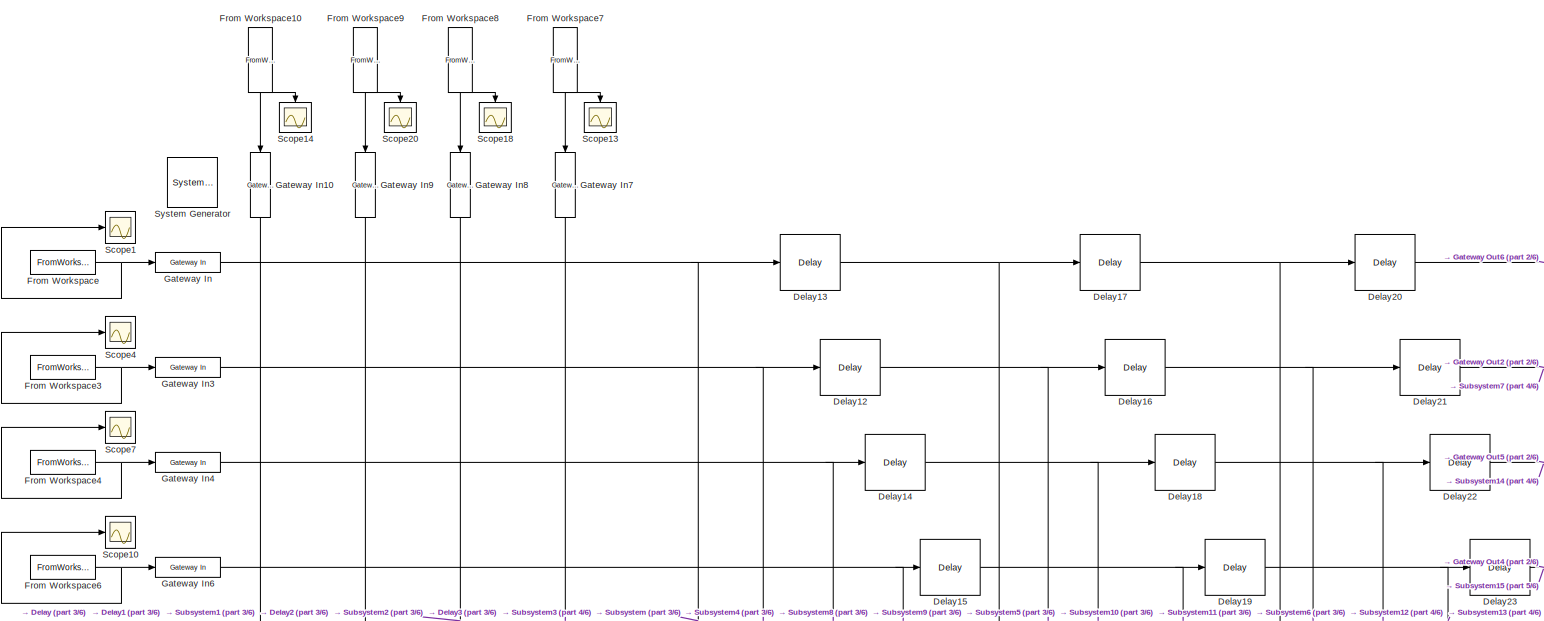
[diagram: root canvas - part 1/6, top left region]
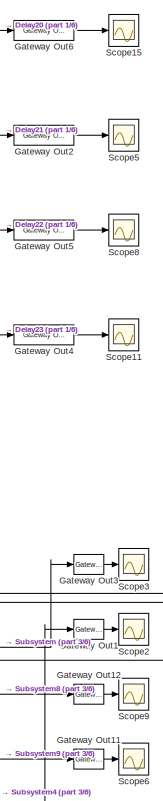
[diagram: root canvas - part 2/6, middle right region]
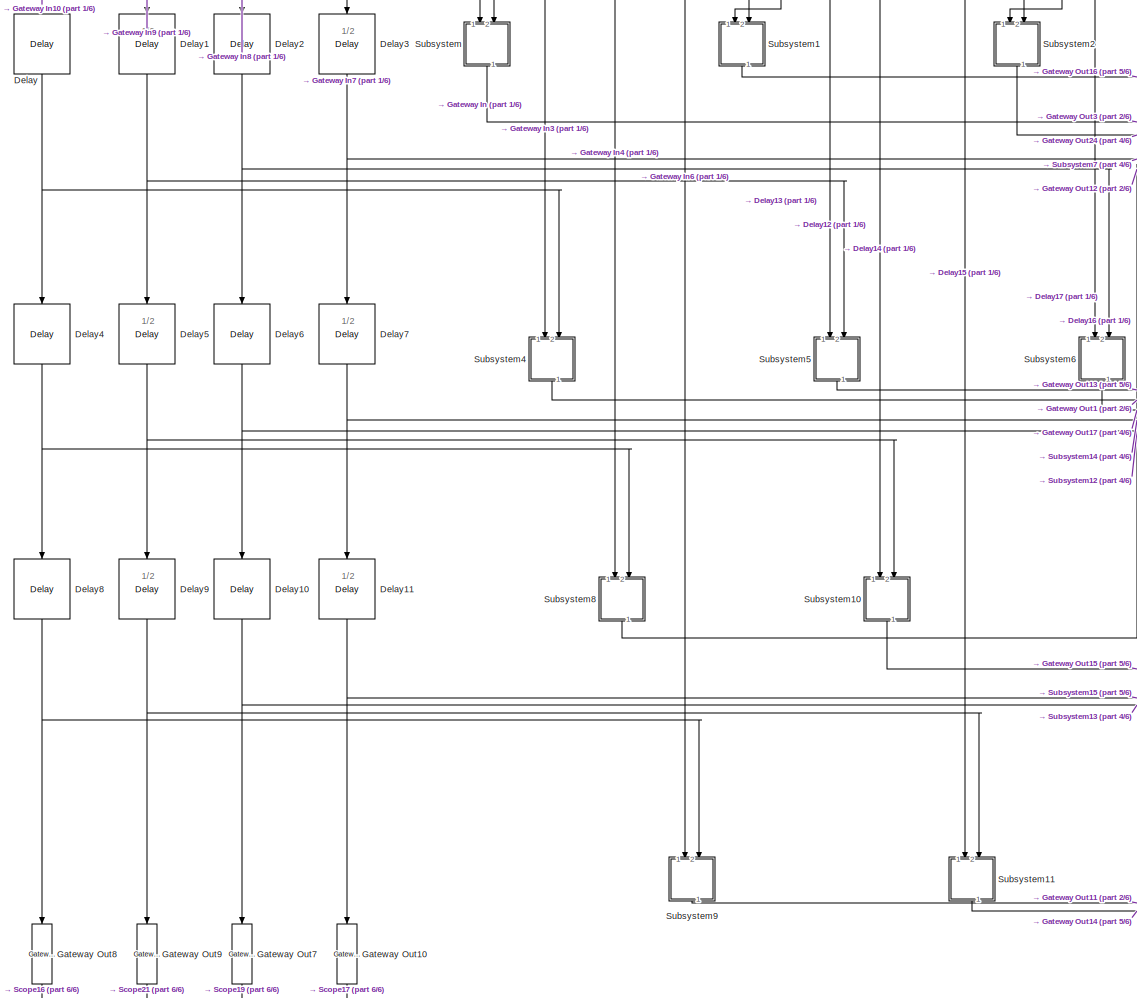
[diagram: root canvas - part 3/6, bottom left region]
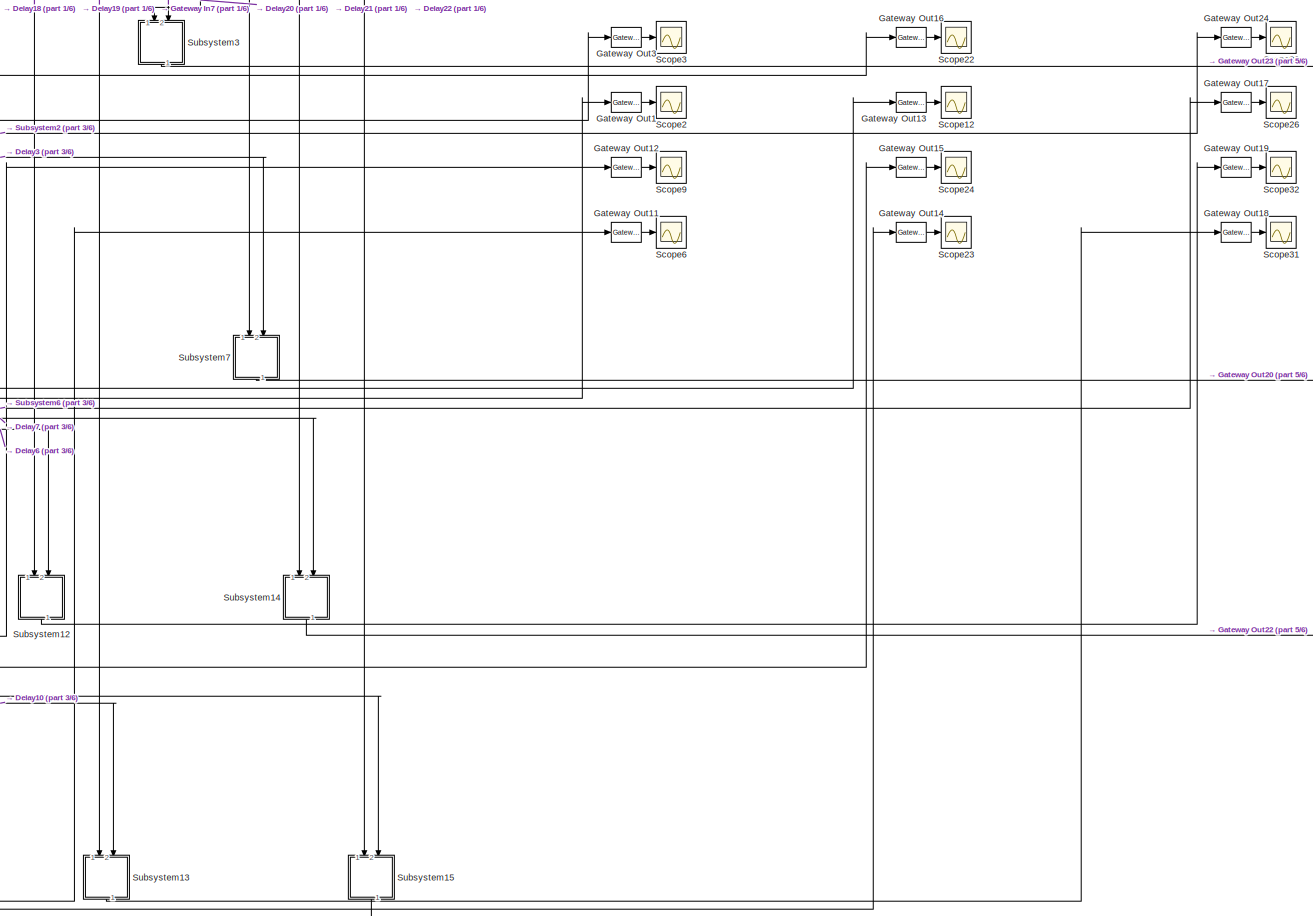
[diagram: root canvas - part 4/6, middle right region]
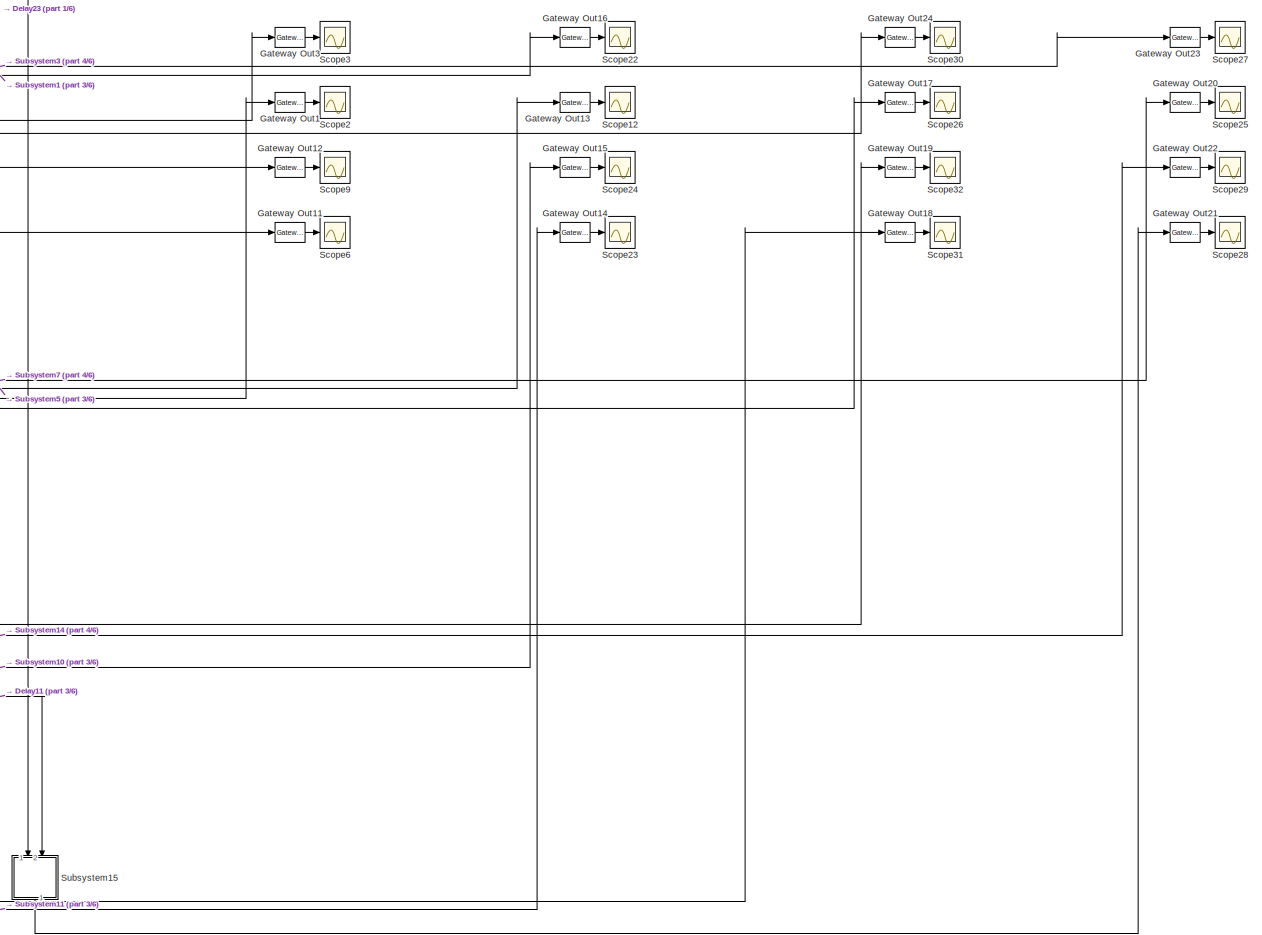
[diagram: root canvas - part 5/6, bottom right region]
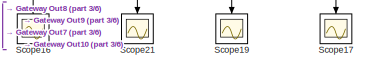
[diagram: root canvas - part 6/6, bottom left region]
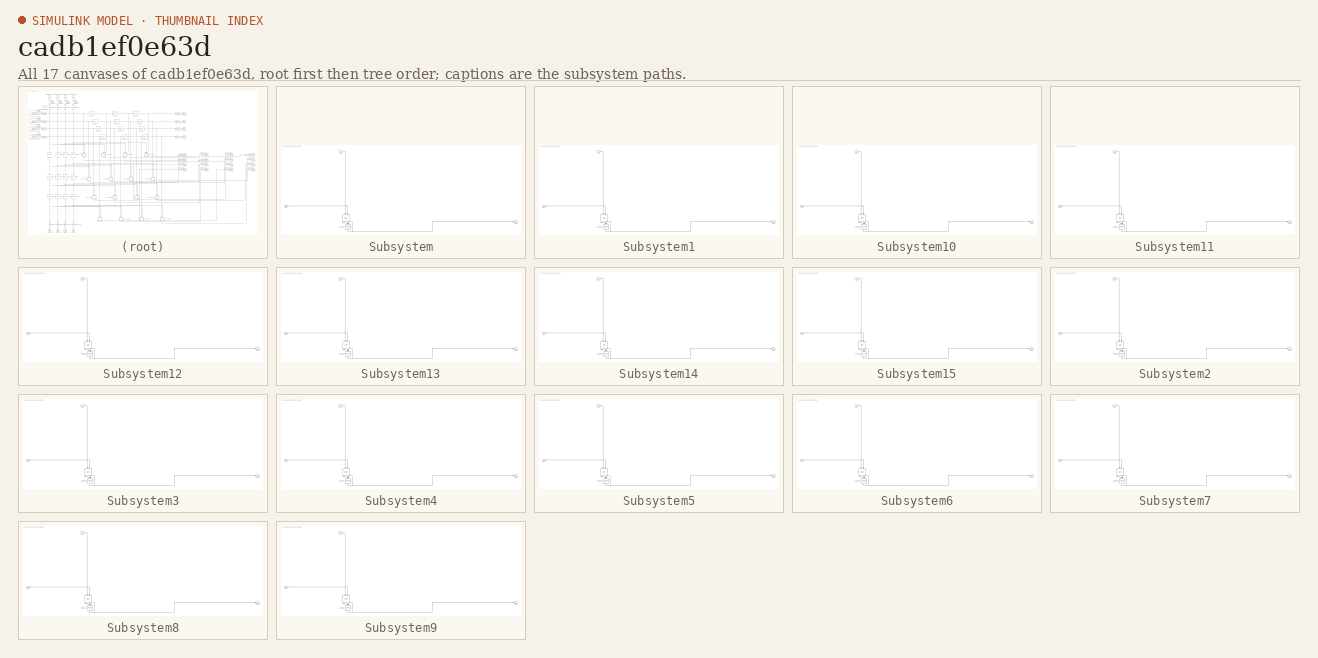
[diagram: thumbnail index - all 17 canvases of the model, root first then tree order]
MODEL slx_cadb1ef0e63d
KIND model
CONFIG AbsTol = auto
CONFIG EnableMultiTasking = off
CONFIG FixedStep = auto
CONFIG MaxStep = auto
CONFIG MinStep = auto
CONFIG RelTol = 1e-3
CONFIG SampleTimeConstraint = Unconstrained
CONFIG SolverName = VariableStepAuto
CONFIG StartTime = 0.0
CONFIG StopTime = 12
BLOCK [Reference]  System Generator  REF=xbsIndex_r4/ System Generator
  AttributesFormatString = System\nGenerator
  Ports = []
  SourceBlock = xbsIndex_r4/ System Generator
  SourceType = Xilinx System Generator Block
  Tag = genX
  UserDataPersistent = on
BLOCK [Reference] Delay  REF=hdlBasic/Delay
  NameLocation = right
  Ports = [1, 1]
  SourceBlock = hdlBasic/Delay
  SourceType = Delay Block
BLOCK [Reference] Delay1  REF=hdlBasic/Delay
  NameLocation = left
  Ports = [1, 1]
  SourceBlock = hdlBasic/Delay
  SourceType = Delay Block
BLOCK [Reference] Delay10  REF=hdlBasic/Delay
  NameLocation = left
  Ports = [1, 1]
  SourceBlock = hdlBasic/Delay
  SourceType = Delay Block
BLOCK [Reference] Delay11  REF=hdlBasic/Delay
  NameLocation = left
  Ports = [1, 1]
  SourceBlock = hdlBasic/Delay
  SourceType = Delay Block
BLOCK [Reference] Delay12  REF=hdlBasic/Delay
  NameLocation = top
  Ports = [1, 1]
  SourceBlock = hdlBasic/Delay
  SourceType = Delay Block
BLOCK [Reference] Delay13  REF=hdlBasic/Delay
  Ports = [1, 1]
  SourceBlock = hdlBasic/Delay
  SourceType = Delay Block
BLOCK [Reference] Delay14  REF=hdlBasic/Delay
  NameLocation = top
  Ports = [1, 1]
  SourceBlock = hdlBasic/Delay
  SourceType = Delay Block
BLOCK [Reference] Delay15  REF=hdlBasic/Delay
  NameLocation = top
  Ports = [1, 1]
  SourceBlock = hdlBasic/Delay
  SourceType = Delay Block
BLOCK [Reference] Delay16  REF=hdlBasic/Delay
  NameLocation = top
  Ports = [1, 1]
  SourceBlock = hdlBasic/Delay
  SourceType = Delay Block
BLOCK [Reference] Delay17  REF=hdlBasic/Delay
  Ports = [1, 1]
  SourceBlock = hdlBasic/Delay
  SourceType = Delay Block
BLOCK [Reference] Delay18  REF=hdlBasic/Delay
  NameLocation = top
  Ports = [1, 1]
  SourceBlock = hdlBasic/Delay
  SourceType = Delay Block
BLOCK [Reference] Delay19  REF=hdlBasic/Delay
  NameLocation = top
  Ports = [1, 1]
  SourceBlock = hdlBasic/Delay
  SourceType = Delay Block
BLOCK [Reference] Delay2  REF=hdlBasic/Delay
  NameLocation = left
  Ports = [1, 1]
  SourceBlock = hdlBasic/Delay
  SourceType = Delay Block
BLOCK [Reference] Delay20  REF=hdlBasic/Delay
  Ports = [1, 1]
  SourceBlock = hdlBasic/Delay
  SourceType = Delay Block
BLOCK [Reference] Delay21  REF=hdlBasic/Delay
  Ports = [1, 1]
  SourceBlock = hdlBasic/Delay
  SourceType = Delay Block
BLOCK [Reference] Delay22  REF=hdlBasic/Delay
  Ports = [1, 1]
  SourceBlock = hdlBasic/Delay
  SourceType = Delay Block
BLOCK [Reference] Delay23  REF=hdlBasic/Delay
  Ports = [1, 1]
  SourceBlock = hdlBasic/Delay
  SourceType = Delay Block
BLOCK [Reference] Delay3  REF=hdlBasic/Delay
  NameLocation = left
  Ports = [1, 1]
  SourceBlock = hdlBasic/Delay
  SourceType = Delay Block
BLOCK [Reference] Delay4  REF=hdlBasic/Delay
  NameLocation = right
  Ports = [1, 1]
  SourceBlock = hdlBasic/Delay
  SourceType = Delay Block
BLOCK [Reference] Delay5  REF=hdlBasic/Delay
  NameLocation = left
  Ports = [1, 1]
  SourceBlock = hdlBasic/Delay
  SourceType = Delay Block
BLOCK [Reference] Delay6  REF=hdlBasic/Delay
  NameLocation = left
  Ports = [1, 1]
  SourceBlock = hdlBasic/Delay
  SourceType = Delay Block
BLOCK [Reference] Delay7  REF=hdlBasic/Delay
  NameLocation = left
  Ports = [1, 1]
  SourceBlock = hdlBasic/Delay
  SourceType = Delay Block
BLOCK [Reference] Delay8  REF=hdlBasic/Delay
  NameLocation = right
  Ports = [1, 1]
  SourceBlock = hdlBasic/Delay
  SourceType = Delay Block
BLOCK [Reference] Delay9  REF=hdlBasic/Delay
  NameLocation = left
  Ports = [1, 1]
  SourceBlock = hdlBasic/Delay
  SourceType = Delay Block
BLOCK [FromWorkspace] From Workspace
  VariableName = a1_var
BLOCK [FromWorkspace] From Workspace10
  NameLocation = left
  VariableName = b1_var
BLOCK [FromWorkspace] From Workspace3
  VariableName = a2_var
BLOCK [FromWorkspace] From Workspace4
  VariableName = a3_var
BLOCK [FromWorkspace] From Workspace6
  VariableName = a4_var
BLOCK [FromWorkspace] From Workspace7
  NameLocation = left
  VariableName = b4_var
BLOCK [FromWorkspace] From Workspace8
  NameLocation = left
  VariableName = b3_var
BLOCK [FromWorkspace] From Workspace9
  NameLocation = left
  VariableName = b2_var
BLOCK [Reference] Gateway In  REF=hdlBasic/Gateway In
  Ports = [1, 1]
  SourceBlock = hdlBasic/Gateway In
  SourceType = Gateway In Block
BLOCK [Reference] Gateway In10  REF=hdlBasic/Gateway In
  NameLocation = left
  Ports = [1, 1]
  SourceBlock = hdlBasic/Gateway In
  SourceType = Gateway In Block
BLOCK [Reference] Gateway In3  REF=hdlBasic/Gateway In
  Ports = [1, 1]
  SourceBlock = hdlBasic/Gateway In
  SourceType = Gateway In Block
BLOCK [Reference] Gateway In4  REF=hdlBasic/Gateway In
  Ports = [1, 1]
  SourceBlock = hdlBasic/Gateway In
  SourceType = Gateway In Block
BLOCK [Reference] Gateway In6  REF=hdlBasic/Gateway In
  Ports = [1, 1]
  SourceBlock = hdlBasic/Gateway In
  SourceType = Gateway In Block
BLOCK [Reference] Gateway In7  REF=hdlBasic/Gateway In
  NameLocation = left
  Ports = [1, 1]
  SourceBlock = hdlBasic/Gateway In
  SourceType = Gateway In Block
BLOCK [Reference] Gateway In8  REF=hdlBasic/Gateway In
  NameLocation = left
  Ports = [1, 1]
  SourceBlock = hdlBasic/Gateway In
  SourceType = Gateway In Block
BLOCK [Reference] Gateway In9  REF=hdlBasic/Gateway In
  NameLocation = left
  Ports = [1, 1]
  SourceBlock = hdlBasic/Gateway In
  SourceType = Gateway In Block
BLOCK [Reference] Gateway Out1  REF=hdlBasic/Gateway Out
  Ports = [1, 1]
  SourceBlock = hdlBasic/Gateway Out
  SourceType = Gateway Out Block
BLOCK [Reference] Gateway Out10  REF=hdlBasic/Gateway Out
  NameLocation = left
  Ports = [1, 1]
  SourceBlock = hdlBasic/Gateway Out
  SourceType = Gateway Out Block
BLOCK [Reference] Gateway Out11  REF=hdlBasic/Gateway Out
  Ports = [1, 1]
  SourceBlock = hdlBasic/Gateway Out
  SourceType = Gateway Out Block
BLOCK [Reference] Gateway Out12  REF=hdlBasic/Gateway Out
  Ports = [1, 1]
  SourceBlock = hdlBasic/Gateway Out
  SourceType = Gateway Out Block
BLOCK [Reference] Gateway Out13  REF=hdlBasic/Gateway Out
  Ports = [1, 1]
  SourceBlock = hdlBasic/Gateway Out
  SourceType = Gateway Out Block
BLOCK [Reference] Gateway Out14  REF=hdlBasic/Gateway Out
  Ports = [1, 1]
  SourceBlock = hdlBasic/Gateway Out
  SourceType = Gateway Out Block
BLOCK [Reference] Gateway Out15  REF=hdlBasic/Gateway Out
  Ports = [1, 1]
  SourceBlock = hdlBasic/Gateway Out
  SourceType = Gateway Out Block
BLOCK [Reference] Gateway Out16  REF=hdlBasic/Gateway Out
  Ports = [1, 1]
  SourceBlock = hdlBasic/Gateway Out
  SourceType = Gateway Out Block
BLOCK [Reference] Gateway Out17  REF=hdlBasic/Gateway Out
  Ports = [1, 1]
  SourceBlock = hdlBasic/Gateway Out
  SourceType = Gateway Out Block
BLOCK [Reference] Gateway Out18  REF=hdlBasic/Gateway Out
  Ports = [1, 1]
  SourceBlock = hdlBasic/Gateway Out
  SourceType = Gateway Out Block
BLOCK [Reference] Gateway Out19  REF=hdlBasic/Gateway Out
  Ports = [1, 1]
  SourceBlock = hdlBasic/Gateway Out
  SourceType = Gateway Out Block
BLOCK [Reference] Gateway Out2  REF=hdlBasic/Gateway Out
  Ports = [1, 1]
  SourceBlock = hdlBasic/Gateway Out
  SourceType = Gateway Out Block
BLOCK [Reference] Gateway Out20  REF=hdlBasic/Gateway Out
  Ports = [1, 1]
  SourceBlock = hdlBasic/Gateway Out
  SourceType = Gateway Out Block
BLOCK [Reference] Gateway Out21  REF=hdlBasic/Gateway Out
  Ports = [1, 1]
  SourceBlock = hdlBasic/Gateway Out
  SourceType = Gateway Out Block
BLOCK [Reference] Gateway Out22  REF=hdlBasic/Gateway Out
  Ports = [1, 1]
  SourceBlock = hdlBasic/Gateway Out
  SourceType = Gateway Out Block
BLOCK [Reference] Gateway Out23  REF=hdlBasic/Gateway Out
  Ports = [1, 1]
  SourceBlock = hdlBasic/Gateway Out
  SourceType = Gateway Out Block
BLOCK [Reference] Gateway Out24  REF=hdlBasic/Gateway Out
  Ports = [1, 1]
  SourceBlock = hdlBasic/Gateway Out
  SourceType = Gateway Out Block
BLOCK [Reference] Gateway Out3  REF=hdlBasic/Gateway Out
  Ports = [1, 1]
  SourceBlock = hdlBasic/Gateway Out
  SourceType = Gateway Out Block
BLOCK [Reference] Gateway Out4  REF=hdlBasic/Gateway Out
  Ports = [1, 1]
  SourceBlock = hdlBasic/Gateway Out
  SourceType = Gateway Out Block
BLOCK [Reference] Gateway Out5  REF=hdlBasic/Gateway Out
  Ports = [1, 1]
  SourceBlock = hdlBasic/Gateway Out
  SourceType = Gateway Out Block
BLOCK [Reference] Gateway Out6  REF=hdlBasic/Gateway Out
  Ports = [1, 1]
  SourceBlock = hdlBasic/Gateway Out
  SourceType = Gateway Out Block
BLOCK [Reference] Gateway Out7  REF=hdlBasic/Gateway Out
  NameLocation = left
  Ports = [1, 1]
  SourceBlock = hdlBasic/Gateway Out
  SourceType = Gateway Out Block
BLOCK [Reference] Gateway Out8  REF=hdlBasic/Gateway Out
  NameLocation = left
  Ports = [1, 1]
  SourceBlock = hdlBasic/Gateway Out
  SourceType = Gateway Out Block
BLOCK [Reference] Gateway Out9  REF=hdlBasic/Gateway Out
  NameLocation = left
  Ports = [1, 1]
  SourceBlock = hdlBasic/Gateway Out
  SourceType = Gateway Out Block
BLOCK [Scope] Scope1
  Floating = off
  NumInputPorts = 1
  Ports = [1]
  ScopeSpecificationString = Simulink.scopes.TimeScopeBlockCfg('CurrentConfiguration', extmgr.ConfigurationSet(extmgr.Configuration('Core','General UI',true),extmgr.Configuration('Core','Source UI',true),extmgr.Configuration('Sources','WiredSimulink',true,'DataLoggingVariableName','ScopeData1','SampleTime','1'),extmgr.Configuration('Visuals','Time Domain',true,'SerializedDisplays',{struct('MinYLimReal','-0.125','MaxYLimReal',...<+1407ch>
BLOCK [Scope] Scope10
  Floating = off
  NumInputPorts = 1
  Ports = [1]
  ScopeSpecificationString = Simulink.scopes.TimeScopeBlockCfg('CurrentConfiguration', extmgr.ConfigurationSet(extmgr.Configuration('Core','General UI',true),extmgr.Configuration('Core','Source UI',true),extmgr.Configuration('Sources','WiredSimulink',true,'DataLoggingVariableName','ScopeData3','SampleTime','1'),extmgr.Configuration('Visuals','Time Domain',true,'SerializedDisplays',{struct('MinYLimReal','-0.5','MaxYLimReal','4...<+1397ch>
BLOCK [Scope] Scope11
  AttributesFormatString = texttest
  Description = C14
  Floating = off
  NumInputPorts = 1
  Ports = [1]
  ScopeSpecificationString = Simulink.scopes.TimeScopeBlockCfg('CurrentConfiguration', extmgr.ConfigurationSet(extmgr.Configuration('Core','General UI',true),extmgr.Configuration('Core','Source UI',true),extmgr.Configuration('Sources','WiredSimulink',true,'DataLoggingVariableName','ScopeData4'),extmgr.Configuration('Visuals','Time Domain',true,'SerializedDisplays',{struct('MinYLimReal','-0.5','MaxYLimReal','4.5','YLabelReal',...<+1377ch>
BLOCK [Scope] Scope12
  AttributesFormatString = texttest
  Description = C14
  Floating = off
  NumInputPorts = 1
  Ports = [1]
  ScopeSpecificationString = Simulink.scopes.TimeScopeBlockCfg('CurrentConfiguration', extmgr.ConfigurationSet(extmgr.Configuration('Core','General UI',true),extmgr.Configuration('Core','Source UI',true),extmgr.Configuration('Sources','WiredSimulink',true,'DataLoggingVariableName','ScopeData4'),extmgr.Configuration('Visuals','Time Domain',true,'SerializedDisplays',{struct('MinYLimReal','-0.5','MaxYLimReal','4.5','YLabelReal',...<+1378ch>
BLOCK [Scope] Scope13
  Floating = off
  NameLocation = left
  NumInputPorts = 1
  Ports = [1]
  ScopeSpecificationString = Simulink.scopes.TimeScopeBlockCfg('CurrentConfiguration', extmgr.ConfigurationSet(extmgr.Configuration('Core','General UI',true),extmgr.Configuration('Core','Source UI',true),extmgr.Configuration('Sources','WiredSimulink',true,'DataLoggingVariableName','ScopeData8','SampleTime','1'),extmgr.Configuration('Visuals','Time Domain',true,'SerializedDisplays',{struct('MinYLimReal','-0.5','MaxYLimReal','4...<+1396ch>
BLOCK [Scope] Scope14
  Floating = off
  NameLocation = left
  NumInputPorts = 1
  Ports = [1]
  ScopeSpecificationString = Simulink.scopes.TimeScopeBlockCfg('CurrentConfiguration', extmgr.ConfigurationSet(extmgr.Configuration('Core','General UI',true),extmgr.Configuration('Core','Source UI',true),extmgr.Configuration('Sources','WiredSimulink',true,'DataLoggingVariableName','ScopeData9','SampleTime','1'),extmgr.Configuration('Visuals','Time Domain',true,'SerializedDisplays',{struct('MinYLimReal','-0.125','MaxYLimReal',...<+1409ch>
BLOCK [Scope] Scope15
  AttributesFormatString = texttest
  Description = C14
  Floating = off
  NumInputPorts = 1
  Ports = [1]
  ScopeSpecificationString = Simulink.scopes.TimeScopeBlockCfg('CurrentConfiguration', extmgr.ConfigurationSet(extmgr.Configuration('Core','General UI',true),extmgr.Configuration('Core','Source UI',true),extmgr.Configuration('Sources','WiredSimulink',true,'DataLoggingVariableName','ScopeData11'),extmgr.Configuration('Visuals','Time Domain',true,'SerializedDisplays',{struct('MinYLimReal','-0.5','MaxYLimReal','4.5','YLabelReal'...<+1378ch>
BLOCK [Scope] Scope16
  AttributesFormatString = texttest
  Description = C14
  Floating = off
  NameLocation = left
  NumInputPorts = 1
  Ports = [1]
  ScopeSpecificationString = Simulink.scopes.TimeScopeBlockCfg('CurrentConfiguration', extmgr.ConfigurationSet(extmgr.Configuration('Core','General UI',true),extmgr.Configuration('Core','Source UI',true),extmgr.Configuration('Sources','WiredSimulink',true,'DataLoggingVariableName','ScopeData10'),extmgr.Configuration('Visuals','Time Domain',true,'SerializedDisplays',{struct('MinYLimReal','-0.125','MaxYLimReal','1.125','YLabelR...<+1390ch>
BLOCK [Scope] Scope17
  AttributesFormatString = texttest
  Description = C14
  Floating = off
  NameLocation = left
  NumInputPorts = 1
  Ports = [1]
  ScopeSpecificationString = Simulink.scopes.TimeScopeBlockCfg('CurrentConfiguration', extmgr.ConfigurationSet(extmgr.Configuration('Core','General UI',true),extmgr.Configuration('Core','Source UI',true),extmgr.Configuration('Sources','WiredSimulink',true,'DataLoggingVariableName','ScopeData11'),extmgr.Configuration('Visuals','Time Domain',true,'SerializedDisplays',{struct('MinYLimReal','-0.5','MaxYLimReal','4.5','YLabelReal'...<+1378ch>
BLOCK [Scope] Scope18
  Floating = off
  NameLocation = left
  NumInputPorts = 1
  Ports = [1]
  ScopeSpecificationString = Simulink.scopes.TimeScopeBlockCfg('CurrentConfiguration', extmgr.ConfigurationSet(extmgr.Configuration('Core','General UI',true),extmgr.Configuration('Core','Source UI',true),extmgr.Configuration('Sources','WiredSimulink',true,'DataLoggingVariableName','ScopeData12','SampleTime','1'),extmgr.Configuration('Visuals','Time Domain',true,'SerializedDisplays',{struct('MinYLimReal','-0.375','MaxYLimReal'...<+1409ch>
BLOCK [Scope] Scope19
  AttributesFormatString = texttest
  Description = C14
  Floating = off
  NameLocation = left
  NumInputPorts = 1
  Ports = [1]
  ScopeSpecificationString = Simulink.scopes.TimeScopeBlockCfg('CurrentConfiguration', extmgr.ConfigurationSet(extmgr.Configuration('Core','General UI',true),extmgr.Configuration('Core','Source UI',true),extmgr.Configuration('Sources','WiredSimulink',true,'DataLoggingVariableName','ScopeData13'),extmgr.Configuration('Visuals','Time Domain',true,'SerializedDisplays',{struct('MinYLimReal','-0.5','MaxYLimReal','4.5','YLabelReal'...<+1378ch>
BLOCK [Scope] Scope2
  AttributesFormatString = texttest
  Description = C14
  Floating = off
  NumInputPorts = 1
  Ports = [1]
  ScopeSpecificationString = Simulink.scopes.TimeScopeBlockCfg('CurrentConfiguration', extmgr.ConfigurationSet(extmgr.Configuration('Core','General UI',true),extmgr.Configuration('Core','Source UI',true),extmgr.Configuration('Sources','WiredSimulink',true,'DataLoggingVariableName','ScopeData1'),extmgr.Configuration('Visuals','Time Domain',true,'SerializedDisplays',{struct('MinYLimReal','-0.5','MaxYLimReal','4.5','YLabelReal',...<+1377ch>
BLOCK [Scope] Scope20
  Floating = off
  NameLocation = left
  NumInputPorts = 1
  Ports = [1]
  ScopeSpecificationString = Simulink.scopes.TimeScopeBlockCfg('CurrentConfiguration', extmgr.ConfigurationSet(extmgr.Configuration('Core','General UI',true),extmgr.Configuration('Core','Source UI',true),extmgr.Configuration('Sources','WiredSimulink',true,'DataLoggingVariableName','ScopeData14','SampleTime','1'),extmgr.Configuration('Visuals','Time Domain',true,'SerializedDisplays',{struct('MinYLimReal','-0.25','MaxYLimReal',...<+1403ch>
BLOCK [Scope] Scope21
  AttributesFormatString = texttest
  Description = C14
  Floating = off
  NameLocation = left
  NumInputPorts = 1
  Ports = [1]
  ScopeSpecificationString = Simulink.scopes.TimeScopeBlockCfg('CurrentConfiguration', extmgr.ConfigurationSet(extmgr.Configuration('Core','General UI',true),extmgr.Configuration('Core','Source UI',true),extmgr.Configuration('Sources','WiredSimulink',true,'DataLoggingVariableName','ScopeData15'),extmgr.Configuration('Visuals','Time Domain',true,'SerializedDisplays',{struct('MinYLimReal','-0.5','MaxYLimReal','4.5','YLabelReal'...<+1378ch>
BLOCK [Scope] Scope22
  AttributesFormatString = texttest
  Description = C14
  Floating = off
  NumInputPorts = 1
  Ports = [1]
  ScopeSpecificationString = Simulink.scopes.TimeScopeBlockCfg('CurrentConfiguration', extmgr.ConfigurationSet(extmgr.Configuration('Core','General UI',true),extmgr.Configuration('Core','Source UI',true),extmgr.Configuration('Sources','WiredSimulink',true,'DataLoggingVariableName','ScopeData5'),extmgr.Configuration('Visuals','Time Domain',true,'SerializedDisplays',{struct('MinYLimReal','-0.5','MaxYLimReal','4.5','YLabelReal',...<+1378ch>
BLOCK [Scope] Scope23
  AttributesFormatString = texttest
  Description = C14
  Floating = off
  NumInputPorts = 1
  Ports = [1]
  ScopeSpecificationString = Simulink.scopes.TimeScopeBlockCfg('CurrentConfiguration', extmgr.ConfigurationSet(extmgr.Configuration('Core','General UI',true),extmgr.Configuration('Core','Source UI',true),extmgr.Configuration('Sources','WiredSimulink',true,'DataLoggingVariableName','ScopeData6'),extmgr.Configuration('Visuals','Time Domain',true,'SerializedDisplays',{struct('MinYLimReal','-0.5','MaxYLimReal','4.5','YLabelReal',...<+1378ch>
BLOCK [Scope] Scope24
  AttributesFormatString = texttest
  Description = C14
  Floating = off
  NumInputPorts = 1
  Ports = [1]
  ScopeSpecificationString = Simulink.scopes.TimeScopeBlockCfg('CurrentConfiguration', extmgr.ConfigurationSet(extmgr.Configuration('Core','General UI',true),extmgr.Configuration('Core','Source UI',true),extmgr.Configuration('Sources','WiredSimulink',true,'DataLoggingVariableName','ScopeData7'),extmgr.Configuration('Visuals','Time Domain',true,'SerializedDisplays',{struct('MinYLimReal','-0.5','MaxYLimReal','4.5','YLabelReal',...<+1378ch>
BLOCK [Scope] Scope25
  AttributesFormatString = texttest
  Description = C14
  Floating = off
  NumInputPorts = 1
  Ports = [1]
  ScopeSpecificationString = Simulink.scopes.TimeScopeBlockCfg('CurrentConfiguration', extmgr.ConfigurationSet(extmgr.Configuration('Core','General UI',true),extmgr.Configuration('Core','Source UI',true),extmgr.Configuration('Sources','WiredSimulink',true,'DataLoggingVariableName','ScopeData8'),extmgr.Configuration('Visuals','Time Domain',true,'SerializedDisplays',{struct('MinYLimReal','-0.5','MaxYLimReal','4.5','YLabelReal',...<+1378ch>
BLOCK [Scope] Scope26
  AttributesFormatString = texttest
  Description = C14
  Floating = off
  NumInputPorts = 1
  Ports = [1]
  ScopeSpecificationString = Simulink.scopes.TimeScopeBlockCfg('CurrentConfiguration', extmgr.ConfigurationSet(extmgr.Configuration('Core','General UI',true),extmgr.Configuration('Core','Source UI',true),extmgr.Configuration('Sources','WiredSimulink',true,'DataLoggingVariableName','ScopeData9'),extmgr.Configuration('Visuals','Time Domain',true,'SerializedDisplays',{struct('MinYLimReal','-0.5','MaxYLimReal','4.5','YLabelReal',...<+1378ch>
BLOCK [Scope] Scope27
  AttributesFormatString = texttest
  Description = C14
  Floating = off
  NumInputPorts = 1
  Ports = [1]
  ScopeSpecificationString = Simulink.scopes.TimeScopeBlockCfg('CurrentConfiguration', extmgr.ConfigurationSet(extmgr.Configuration('Core','General UI',true),extmgr.Configuration('Core','Source UI',true),extmgr.Configuration('Sources','WiredSimulink',true,'DataLoggingVariableName','ScopeData10'),extmgr.Configuration('Visuals','Time Domain',true,'SerializedDisplays',{struct('MinYLimReal','-0.5','MaxYLimReal','4.5','YLabelReal'...<+1379ch>
BLOCK [Scope] Scope28
  AttributesFormatString = texttest
  Description = C14
  Floating = off
  NumInputPorts = 1
  Ports = [1]
  ScopeSpecificationString = Simulink.scopes.TimeScopeBlockCfg('CurrentConfiguration', extmgr.ConfigurationSet(extmgr.Configuration('Core','General UI',true),extmgr.Configuration('Core','Source UI',true),extmgr.Configuration('Sources','WiredSimulink',true,'DataLoggingVariableName','ScopeData11'),extmgr.Configuration('Visuals','Time Domain',true,'SerializedDisplays',{struct('MinYLimReal','2.60792','MaxYLimReal','4.08333','YLab...<+1420ch>
BLOCK [Scope] Scope29
  AttributesFormatString = texttest
  Description = C14
  Floating = off
  NumInputPorts = 1
  Ports = [1]
  ScopeSpecificationString = Simulink.scopes.TimeScopeBlockCfg('CurrentConfiguration', extmgr.ConfigurationSet(extmgr.Configuration('Core','General UI',true),extmgr.Configuration('Core','Source UI',true),extmgr.Configuration('Sources','WiredSimulink',true,'DataLoggingVariableName','ScopeData12'),extmgr.Configuration('Visuals','Time Domain',true,'SerializedDisplays',{struct('MinYLimReal','-0.5','MaxYLimReal','4.5','YLabelReal'...<+1379ch>
BLOCK [Scope] Scope3
  AttributesFormatString = texttest
  Description = C14
  Floating = off
  NumInputPorts = 1
  Ports = [1]
  ScopeSpecificationString = Simulink.scopes.TimeScopeBlockCfg('CurrentConfiguration', extmgr.ConfigurationSet(extmgr.Configuration('Core','General UI',true),extmgr.Configuration('Core','Source UI',true),extmgr.Configuration('Sources','WiredSimulink',true,'DataLoggingVariableName','ScopeData16'),extmgr.Configuration('Visuals','Time Domain',true,'SerializedDisplays',{struct('MinYLimReal','2.07514','MaxYLimReal','4.05601','YLab...<+1418ch>
BLOCK [Scope] Scope30
  AttributesFormatString = texttest
  Description = C14
  Floating = off
  NumInputPorts = 1
  Ports = [1]
  ScopeSpecificationString = Simulink.scopes.TimeScopeBlockCfg('CurrentConfiguration', extmgr.ConfigurationSet(extmgr.Configuration('Core','General UI',true),extmgr.Configuration('Core','Source UI',true),extmgr.Configuration('Sources','WiredSimulink',true,'DataLoggingVariableName','ScopeData13'),extmgr.Configuration('Visuals','Time Domain',true,'SerializedDisplays',{struct('MinYLimReal','-0.5','MaxYLimReal','4.5','YLabelReal'...<+1379ch>
BLOCK [Scope] Scope31
  AttributesFormatString = texttest
  Description = C14
  Floating = off
  NumInputPorts = 1
  Ports = [1]
  ScopeSpecificationString = Simulink.scopes.TimeScopeBlockCfg('CurrentConfiguration', extmgr.ConfigurationSet(extmgr.Configuration('Core','General UI',true),extmgr.Configuration('Core','Source UI',true),extmgr.Configuration('Sources','WiredSimulink',true,'DataLoggingVariableName','ScopeData14'),extmgr.Configuration('Visuals','Time Domain',true,'SerializedDisplays',{struct('MinYLimReal','-3.75','MaxYLimReal','33.75','YLabelRe...<+1408ch>
BLOCK [Scope] Scope32
  AttributesFormatString = texttest
  Description = C14
  Floating = off
  NumInputPorts = 1
  Ports = [1]
  ScopeSpecificationString = Simulink.scopes.TimeScopeBlockCfg('CurrentConfiguration', extmgr.ConfigurationSet(extmgr.Configuration('Core','General UI',true),extmgr.Configuration('Core','Source UI',true),extmgr.Configuration('Sources','WiredSimulink',true,'DataLoggingVariableName','ScopeData15'),extmgr.Configuration('Visuals','Time Domain',true,'SerializedDisplays',{struct('MinYLimReal','-0.5','MaxYLimReal','4.5','YLabelReal'...<+1379ch>
BLOCK [Scope] Scope4
  Floating = off
  NumInputPorts = 1
  Ports = [1]
  ScopeSpecificationString = Simulink.scopes.TimeScopeBlockCfg('CurrentConfiguration', extmgr.ConfigurationSet(extmgr.Configuration('Core','General UI',true),extmgr.Configuration('Core','Source UI',true),extmgr.Configuration('Sources','WiredSimulink',true,'DataLoggingVariableName','ScopeData1','SampleTime','1'),extmgr.Configuration('Visuals','Time Domain',true,'SerializedDisplays',{struct('MinYLimReal','-0.5','MaxYLimReal','4...<+1396ch>
BLOCK [Scope] Scope5
  AttributesFormatString = texttest
  Description = C14
  Floating = off
  NumInputPorts = 1
  Ports = [1]
  ScopeSpecificationString = Simulink.scopes.TimeScopeBlockCfg('CurrentConfiguration', extmgr.ConfigurationSet(extmgr.Configuration('Core','General UI',true),extmgr.Configuration('Core','Source UI',true),extmgr.Configuration('Sources','WiredSimulink',true,'DataLoggingVariableName','ScopeData2'),extmgr.Configuration('Visuals','Time Domain',true,'SerializedDisplays',{struct('MinYLimReal','-0.5','MaxYLimReal','4.5','YLabelReal',...<+1377ch>
BLOCK [Scope] Scope6
  AttributesFormatString = texttest
  Description = C14
  Floating = off
  NumInputPorts = 1
  Ports = [1]
  ScopeSpecificationString = Simulink.scopes.TimeScopeBlockCfg('CurrentConfiguration', extmgr.ConfigurationSet(extmgr.Configuration('Core','General UI',true),extmgr.Configuration('Core','Source UI',true),extmgr.Configuration('Sources','WiredSimulink',true,'DataLoggingVariableName','ScopeData2'),extmgr.Configuration('Visuals','Time Domain',true,'SerializedDisplays',{struct('MinYLimReal','-0.5','MaxYLimReal','4.5','YLabelReal',...<+1378ch>
BLOCK [Scope] Scope7
  Floating = off
  NumInputPorts = 1
  Ports = [1]
  ScopeSpecificationString = Simulink.scopes.TimeScopeBlockCfg('CurrentConfiguration', extmgr.ConfigurationSet(extmgr.Configuration('Core','General UI',true),extmgr.Configuration('Core','Source UI',true),extmgr.Configuration('Sources','WiredSimulink',true,'DataLoggingVariableName','ScopeData6','SampleTime','1'),extmgr.Configuration('Visuals','Time Domain',true,'SerializedDisplays',{struct('MinYLimReal','-0.5','MaxYLimReal','4...<+1396ch>
BLOCK [Scope] Scope8
  AttributesFormatString = texttest
  Description = C14
  Floating = off
  NumInputPorts = 1
  Ports = [1]
  ScopeSpecificationString = Simulink.scopes.TimeScopeBlockCfg('CurrentConfiguration', extmgr.ConfigurationSet(extmgr.Configuration('Core','General UI',true),extmgr.Configuration('Core','Source UI',true),extmgr.Configuration('Sources','WiredSimulink',true,'DataLoggingVariableName','ScopeData7'),extmgr.Configuration('Visuals','Time Domain',true,'SerializedDisplays',{struct('MinYLimReal','-0.5','MaxYLimReal','4.5','YLabelReal',...<+1377ch>
BLOCK [Scope] Scope9
  AttributesFormatString = texttest
  Description = C14
  Floating = off
  NumInputPorts = 1
  Ports = [1]
  ScopeSpecificationString = Simulink.scopes.TimeScopeBlockCfg('CurrentConfiguration', extmgr.ConfigurationSet(extmgr.Configuration('Core','General UI',true),extmgr.Configuration('Core','Source UI',true),extmgr.Configuration('Sources','WiredSimulink',true,'DataLoggingVariableName','ScopeData3'),extmgr.Configuration('Visuals','Time Domain',true,'SerializedDisplays',{struct('MinYLimReal','-1.25','MaxYLimReal','11.25','YLabelRea...<+1388ch>
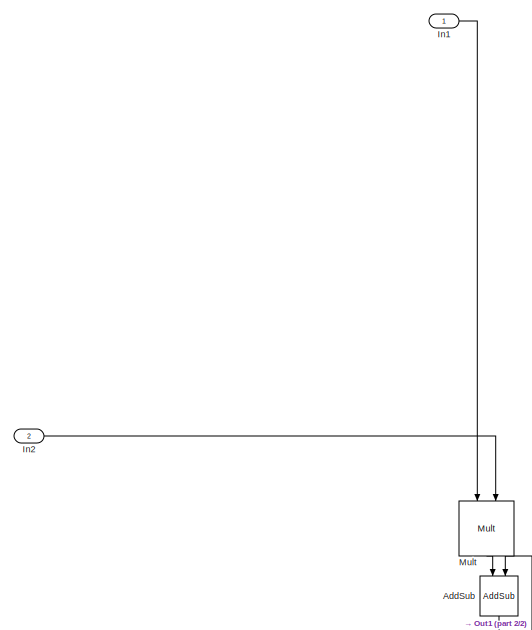
[diagram: Subsystem - part 1/2, left side, full height]
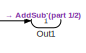
[diagram: Subsystem - part 2/2, bottom right region]
BLOCK [SubSystem] Subsystem
  NameLocation = left
  Ports = [2, 1]
  RequestExecContextInheritance = off
BLOCK [Reference] Subsystem/AddSub  REF=hdlBasic/AddSub
  NameLocation = left
  Ports = [2, 1]
  SourceBlock = hdlBasic/AddSub
  SourceType = Adder/Subtracter Block
BLOCK [Inport] Subsystem/In1
BLOCK [Inport] Subsystem/In2
  Port = 2
BLOCK [Reference] Subsystem/Mult  REF=hdlBasic/Mult
  NameLocation = left
  Ports = [2, 1]
  SourceBlock = hdlBasic/Mult
  SourceType = Multiplier Block
BLOCK [Outport] Subsystem/Out1
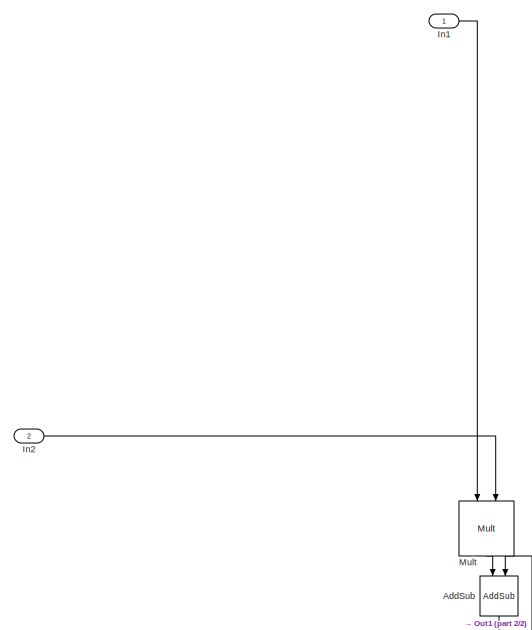
[diagram: Subsystem1 - part 1/2, left side, full height]
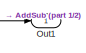
[diagram: Subsystem1 - part 2/2, bottom right region]
BLOCK [SubSystem] Subsystem1
  NameLocation = left
  Ports = [2, 1]
  RequestExecContextInheritance = off
BLOCK [Reference] Subsystem1/AddSub  REF=hdlBasic/AddSub
  NameLocation = left
  Ports = [2, 1]
  SourceBlock = hdlBasic/AddSub
  SourceType = Adder/Subtracter Block
BLOCK [Inport] Subsystem1/In1
BLOCK [Inport] Subsystem1/In2
  Port = 2
BLOCK [Reference] Subsystem1/Mult  REF=hdlBasic/Mult
  NameLocation = left
  Ports = [2, 1]
  SourceBlock = hdlBasic/Mult
  SourceType = Multiplier Block
BLOCK [Outport] Subsystem1/Out1
BLOCK [SubSystem] Subsystem10
  NameLocation = left
  Ports = [2, 1]
  RequestExecContextInheritance = off
BLOCK [Reference] Subsystem10/AddSub  REF=hdlBasic/AddSub
  NameLocation = left
  Ports = [2, 1]
  SourceBlock = hdlBasic/AddSub
  SourceType = Adder/Subtracter Block
BLOCK [Inport] Subsystem10/In1
BLOCK [Inport] Subsystem10/In2
  Port = 2
BLOCK [Reference] Subsystem10/Mult  REF=hdlBasic/Mult
  NameLocation = left
  Ports = [2, 1]
  SourceBlock = hdlBasic/Mult
  SourceType = Multiplier Block
BLOCK [Outport] Subsystem10/Out1
BLOCK [SubSystem] Subsystem11
  NameLocation = left
  Ports = [2, 1]
  RequestExecContextInheritance = off
BLOCK [Reference] Subsystem11/AddSub  REF=hdlBasic/AddSub
  NameLocation = left
  Ports = [2, 1]
  SourceBlock = hdlBasic/AddSub
  SourceType = Adder/Subtracter Block
BLOCK [Inport] Subsystem11/In1
BLOCK [Inport] Subsystem11/In2
  Port = 2
BLOCK [Reference] Subsystem11/Mult  REF=hdlBasic/Mult
  NameLocation = left
  Ports = [2, 1]
  SourceBlock = hdlBasic/Mult
  SourceType = Multiplier Block
BLOCK [Outport] Subsystem11/Out1
BLOCK [SubSystem] Subsystem12
  NameLocation = left
  Ports = [2, 1]
  RequestExecContextInheritance = off
BLOCK [Reference] Subsystem12/AddSub  REF=hdlBasic/AddSub
  NameLocation = left
  Ports = [2, 1]
  SourceBlock = hdlBasic/AddSub
  SourceType = Adder/Subtracter Block
BLOCK [Inport] Subsystem12/In1
BLOCK [Inport] Subsystem12/In2
  Port = 2
BLOCK [Reference] Subsystem12/Mult  REF=hdlBasic/Mult
  NameLocation = left
  Ports = [2, 1]
  SourceBlock = hdlBasic/Mult
  SourceType = Multiplier Block
BLOCK [Outport] Subsystem12/Out1
BLOCK [SubSystem] Subsystem13
  NameLocation = left
  Ports = [2, 1]
  RequestExecContextInheritance = off
BLOCK [Reference] Subsystem13/AddSub  REF=hdlBasic/AddSub
  NameLocation = left
  Ports = [2, 1]
  SourceBlock = hdlBasic/AddSub
  SourceType = Adder/Subtracter Block
BLOCK [Inport] Subsystem13/In1
BLOCK [Inport] Subsystem13/In2
  Port = 2
BLOCK [Reference] Subsystem13/Mult  REF=hdlBasic/Mult
  NameLocation = left
  Ports = [2, 1]
  SourceBlock = hdlBasic/Mult
  SourceType = Multiplier Block
BLOCK [Outport] Subsystem13/Out1
BLOCK [SubSystem] Subsystem14
  NameLocation = left
  Ports = [2, 1]
  RequestExecContextInheritance = off
BLOCK [Reference] Subsystem14/AddSub  REF=hdlBasic/AddSub
  NameLocation = left
  Ports = [2, 1]
  SourceBlock = hdlBasic/AddSub
  SourceType = Adder/Subtracter Block
BLOCK [Inport] Subsystem14/In1
BLOCK [Inport] Subsystem14/In2
  Port = 2
BLOCK [Reference] Subsystem14/Mult  REF=hdlBasic/Mult
  NameLocation = left
  Ports = [2, 1]
  SourceBlock = hdlBasic/Mult
  SourceType = Multiplier Block
BLOCK [Outport] Subsystem14/Out1
BLOCK [SubSystem] Subsystem15
  NameLocation = left
  Ports = [2, 1]
  RequestExecContextInheritance = off
BLOCK [Reference] Subsystem15/AddSub  REF=hdlBasic/AddSub
  NameLocation = left
  Ports = [2, 1]
  SourceBlock = hdlBasic/AddSub
  SourceType = Adder/Subtracter Block
BLOCK [Inport] Subsystem15/In1
BLOCK [Inport] Subsystem15/In2
  Port = 2
BLOCK [Reference] Subsystem15/Mult  REF=hdlBasic/Mult
  NameLocation = left
  Ports = [2, 1]
  SourceBlock = hdlBasic/Mult
  SourceType = Multiplier Block
BLOCK [Outport] Subsystem15/Out1
BLOCK [SubSystem] Subsystem2
  NameLocation = left
  Ports = [2, 1]
  RequestExecContextInheritance = off
BLOCK [Reference] Subsystem2/AddSub  REF=hdlBasic/AddSub
  NameLocation = left
  Ports = [2, 1]
  SourceBlock = hdlBasic/AddSub
  SourceType = Adder/Subtracter Block
BLOCK [Inport] Subsystem2/In1
BLOCK [Inport] Subsystem2/In2
  Port = 2
BLOCK [Reference] Subsystem2/Mult  REF=hdlBasic/Mult
  NameLocation = left
  Ports = [2, 1]
  SourceBlock = hdlBasic/Mult
  SourceType = Multiplier Block
BLOCK [Outport] Subsystem2/Out1
BLOCK [SubSystem] Subsystem3
  NameLocation = left
  Ports = [2, 1]
  RequestExecContextInheritance = off
BLOCK [Reference] Subsystem3/AddSub  REF=hdlBasic/AddSub
  NameLocation = left
  Ports = [2, 1]
  SourceBlock = hdlBasic/AddSub
  SourceType = Adder/Subtracter Block
BLOCK [Inport] Subsystem3/In1
BLOCK [Inport] Subsystem3/In2
  Port = 2
BLOCK [Reference] Subsystem3/Mult  REF=hdlBasic/Mult
  NameLocation = left
  Ports = [2, 1]
  SourceBlock = hdlBasic/Mult
  SourceType = Multiplier Block
BLOCK [Outport] Subsystem3/Out1
BLOCK [SubSystem] Subsystem4
  NameLocation = left
  Ports = [2, 1]
  RequestExecContextInheritance = off
BLOCK [Reference] Subsystem4/AddSub  REF=hdlBasic/AddSub
  NameLocation = left
  Ports = [2, 1]
  SourceBlock = hdlBasic/AddSub
  SourceType = Adder/Subtracter Block
BLOCK [Inport] Subsystem4/In1
BLOCK [Inport] Subsystem4/In2
  Port = 2
BLOCK [Reference] Subsystem4/Mult  REF=hdlBasic/Mult
  NameLocation = left
  Ports = [2, 1]
  SourceBlock = hdlBasic/Mult
  SourceType = Multiplier Block
BLOCK [Outport] Subsystem4/Out1
BLOCK [SubSystem] Subsystem5
  NameLocation = left
  Ports = [2, 1]
  RequestExecContextInheritance = off
BLOCK [Reference] Subsystem5/AddSub  REF=hdlBasic/AddSub
  NameLocation = left
  Ports = [2, 1]
  SourceBlock = hdlBasic/AddSub
  SourceType = Adder/Subtracter Block
BLOCK [Inport] Subsystem5/In1
BLOCK [Inport] Subsystem5/In2
  Port = 2
BLOCK [Reference] Subsystem5/Mult  REF=hdlBasic/Mult
  NameLocation = left
  Ports = [2, 1]
  SourceBlock = hdlBasic/Mult
  SourceType = Multiplier Block
BLOCK [Outport] Subsystem5/Out1
BLOCK [SubSystem] Subsystem6
  NameLocation = left
  Ports = [2, 1]
  RequestExecContextInheritance = off
BLOCK [Reference] Subsystem6/AddSub  REF=hdlBasic/AddSub
  NameLocation = left
  Ports = [2, 1]
  SourceBlock = hdlBasic/AddSub
  SourceType = Adder/Subtracter Block
BLOCK [Inport] Subsystem6/In1
BLOCK [Inport] Subsystem6/In2
  Port = 2
BLOCK [Reference] Subsystem6/Mult  REF=hdlBasic/Mult
  NameLocation = left
  Ports = [2, 1]
  SourceBlock = hdlBasic/Mult
  SourceType = Multiplier Block
BLOCK [Outport] Subsystem6/Out1
BLOCK [SubSystem] Subsystem7
  NameLocation = left
  Ports = [2, 1]
  RequestExecContextInheritance = off
BLOCK [Reference] Subsystem7/AddSub  REF=hdlBasic/AddSub
  NameLocation = left
  Ports = [2, 1]
  SourceBlock = hdlBasic/AddSub
  SourceType = Adder/Subtracter Block
BLOCK [Inport] Subsystem7/In1
BLOCK [Inport] Subsystem7/In2
  Port = 2
BLOCK [Reference] Subsystem7/Mult  REF=hdlBasic/Mult
  NameLocation = left
  Ports = [2, 1]
  SourceBlock = hdlBasic/Mult
  SourceType = Multiplier Block
BLOCK [Outport] Subsystem7/Out1
BLOCK [SubSystem] Subsystem8
  NameLocation = left
  Ports = [2, 1]
  RequestExecContextInheritance = off
BLOCK [Reference] Subsystem8/AddSub  REF=hdlBasic/AddSub
  NameLocation = left
  Ports = [2, 1]
  SourceBlock = hdlBasic/AddSub
  SourceType = Adder/Subtracter Block
BLOCK [Inport] Subsystem8/In1
BLOCK [Inport] Subsystem8/In2
  Port = 2
BLOCK [Reference] Subsystem8/Mult  REF=hdlBasic/Mult
  NameLocation = left
  Ports = [2, 1]
  SourceBlock = hdlBasic/Mult
  SourceType = Multiplier Block
BLOCK [Outport] Subsystem8/Out1
BLOCK [SubSystem] Subsystem9
  NameLocation = left
  Ports = [2, 1]
  RequestExecContextInheritance = off
BLOCK [Reference] Subsystem9/AddSub  REF=hdlBasic/AddSub
  NameLocation = left
  Ports = [2, 1]
  SourceBlock = hdlBasic/AddSub
  SourceType = Adder/Subtracter Block
BLOCK [Inport] Subsystem9/In1
BLOCK [Inport] Subsystem9/In2
  Port = 2
BLOCK [Reference] Subsystem9/Mult  REF=hdlBasic/Mult
  NameLocation = left
  Ports = [2, 1]
  SourceBlock = hdlBasic/Mult
  SourceType = Multiplier Block
BLOCK [Outport] Subsystem9/Out1
ANNOTATION (root): 1/2
NET Delay10:1 -> Gateway Out7:1, Subsystem13:2
NET Delay11:1 -> Gateway Out10:1, Subsystem15:2
NET Delay12:1 -> Delay16:1, Subsystem5:1
NET Delay13:1 -> Delay17:1, Subsystem1:1
NET Delay14:1 -> Delay18:1, Subsystem10:1
NET Delay15:1 -> Delay19:1, Subsystem11:1
NET Delay16:1 -> Delay21:1, Subsystem6:1
NET Delay17:1 -> Delay20:1, Subsystem2:1
NET Delay18:1 -> Delay22:1, Subsystem12:1
NET Delay19:1 -> Delay23:1, Subsystem13:1
NET Delay1:1 -> Delay5:1, Subsystem5:2
NET Delay20:1 -> Gateway Out6:1, Subsystem3:1
NET Delay21:1 -> Gateway Out2:1, Subsystem7:1
NET Delay22:1 -> Gateway Out5:1, Subsystem14:1
NET Delay23:1 -> Gateway Out4:1, Subsystem15:1
NET Delay2:1 -> Delay6:1, Subsystem6:2
NET Delay3:1 -> Delay7:1, Subsystem7:2
NET Delay4:1 -> Delay8:1, Subsystem8:2
NET Delay5:1 -> Delay9:1, Subsystem10:2
NET Delay6:1 -> Delay10:1, Subsystem12:2
NET Delay7:1 -> Delay11:1, Subsystem14:2
NET Delay8:1 -> Gateway Out8:1, Subsystem9:2
NET Delay9:1 -> Gateway Out9:1, Subsystem11:2
NET Delay:1 -> Delay4:1, Subsystem4:2
NET From Workspace10:1 -> Gateway In10:1, Scope14:1
NET From Workspace3:1 -> Gateway In3:1, Scope4:1
NET From Workspace4:1 -> Gateway In4:1, Scope7:1
NET From Workspace6:1 -> Gateway In6:1, Scope10:1
NET From Workspace7:1 -> Gateway In7:1, Scope13:1
NET From Workspace8:1 -> Gateway In8:1, Scope18:1
NET From Workspace9:1 -> Gateway In9:1, Scope20:1
NET From Workspace:1 -> Gateway In:1, Scope1:1
NET Gateway In10:1 -> Delay:1, Subsystem:2
NET Gateway In3:1 -> Delay12:1, Subsystem4:1
NET Gateway In4:1 -> Delay14:1, Subsystem8:1
NET Gateway In6:1 -> Delay15:1, Subsystem9:1
NET Gateway In7:1 -> Delay3:1, Subsystem3:2
NET Gateway In8:1 -> Delay2:1, Subsystem2:2
NET Gateway In9:1 -> Delay1:1, Subsystem1:2
NET Gateway In:1 -> Delay13:1, Subsystem:1
LINE Gateway Out10:1 -> Scope17:1
LINE Gateway Out11:1 -> Scope6:1
LINE Gateway Out12:1 -> Scope9:1
LINE Gateway Out13:1 -> Scope12:1
LINE Gateway Out14:1 -> Scope23:1
LINE Gateway Out15:1 -> Scope24:1
LINE Gateway Out16:1 -> Scope22:1
LINE Gateway Out17:1 -> Scope26:1
LINE Gateway Out18:1 -> Scope31:1
LINE Gateway Out19:1 -> Scope32:1
LINE Gateway Out1:1 -> Scope2:1
LINE Gateway Out20:1 -> Scope25:1
LINE Gateway Out21:1 -> Scope28:1
LINE Gateway Out22:1 -> Scope29:1
LINE Gateway Out23:1 -> Scope27:1
LINE Gateway Out24:1 -> Scope30:1
LINE Gateway Out2:1 -> Scope5:1
LINE Gateway Out3:1 -> Scope3:1
LINE Gateway Out4:1 -> Scope11:1
LINE Gateway Out5:1 -> Scope8:1
LINE Gateway Out6:1 -> Scope15:1
LINE Gateway Out7:1 -> Scope19:1
LINE Gateway Out8:1 -> Scope16:1
LINE Gateway Out9:1 -> Scope21:1
NET Subsystem/AddSub:1 -> Subsystem/AddSub:2, Subsystem/Out1:1
LINE Subsystem/In1:1 -> Subsystem/Mult:1
LINE Subsystem/In2:1 -> Subsystem/Mult:2
LINE Subsystem/Mult:1 -> Subsystem/AddSub:1
NET Subsystem1/AddSub:1 -> Subsystem1/AddSub:2, Subsystem1/Out1:1
LINE Subsystem1/In1:1 -> Subsystem1/Mult:1
LINE Subsystem1/In2:1 -> Subsystem1/Mult:2
LINE Subsystem1/Mult:1 -> Subsystem1/AddSub:1
NET Subsystem10/AddSub:1 -> Subsystem10/AddSub:2, Subsystem10/Out1:1
LINE Subsystem10/In1:1 -> Subsystem10/Mult:1
LINE Subsystem10/In2:1 -> Subsystem10/Mult:2
LINE Subsystem10/Mult:1 -> Subsystem10/AddSub:1
LINE Subsystem10:1 -> Gateway Out15:1
NET Subsystem11/AddSub:1 -> Subsystem11/AddSub:2, Subsystem11/Out1:1
LINE Subsystem11/In1:1 -> Subsystem11/Mult:1
LINE Subsystem11/In2:1 -> Subsystem11/Mult:2
LINE Subsystem11/Mult:1 -> Subsystem11/AddSub:1
LINE Subsystem11:1 -> Gateway Out14:1
NET Subsystem12/AddSub:1 -> Subsystem12/AddSub:2, Subsystem12/Out1:1
LINE Subsystem12/In1:1 -> Subsystem12/Mult:1
LINE Subsystem12/In2:1 -> Subsystem12/Mult:2
LINE Subsystem12/Mult:1 -> Subsystem12/AddSub:1
LINE Subsystem12:1 -> Gateway Out19:1
NET Subsystem13/AddSub:1 -> Subsystem13/AddSub:2, Subsystem13/Out1:1
LINE Subsystem13/In1:1 -> Subsystem13/Mult:1
LINE Subsystem13/In2:1 -> Subsystem13/Mult:2
LINE Subsystem13/Mult:1 -> Subsystem13/AddSub:1
LINE Subsystem13:1 -> Gateway Out18:1
NET Subsystem14/AddSub:1 -> Subsystem14/AddSub:2, Subsystem14/Out1:1
LINE Subsystem14/In1:1 -> Subsystem14/Mult:1
LINE Subsystem14/In2:1 -> Subsystem14/Mult:2
LINE Subsystem14/Mult:1 -> Subsystem14/AddSub:1
LINE Subsystem14:1 -> Gateway Out22:1
NET Subsystem15/AddSub:1 -> Subsystem15/AddSub:2, Subsystem15/Out1:1
LINE Subsystem15/In1:1 -> Subsystem15/Mult:1
LINE Subsystem15/In2:1 -> Subsystem15/Mult:2
LINE Subsystem15/Mult:1 -> Subsystem15/AddSub:1
LINE Subsystem15:1 -> Gateway Out21:1
LINE Subsystem1:1 -> Gateway Out16:1
NET Subsystem2/AddSub:1 -> Subsystem2/AddSub:2, Subsystem2/Out1:1
LINE Subsystem2/In1:1 -> Subsystem2/Mult:1
LINE Subsystem2/In2:1 -> Subsystem2/Mult:2
LINE Subsystem2/Mult:1 -> Subsystem2/AddSub:1
LINE Subsystem2:1 -> Gateway Out24:1
NET Subsystem3/AddSub:1 -> Subsystem3/AddSub:2, Subsystem3/Out1:1
LINE Subsystem3/In1:1 -> Subsystem3/Mult:1
LINE Subsystem3/In2:1 -> Subsystem3/Mult:2
LINE Subsystem3/Mult:1 -> Subsystem3/AddSub:1
LINE Subsystem3:1 -> Gateway Out23:1
NET Subsystem4/AddSub:1 -> Subsystem4/AddSub:2, Subsystem4/Out1:1
LINE Subsystem4/In1:1 -> Subsystem4/Mult:1
LINE Subsystem4/In2:1 -> Subsystem4/Mult:2
LINE Subsystem4/Mult:1 -> Subsystem4/AddSub:1
LINE Subsystem4:1 -> Gateway Out1:1
NET Subsystem5/AddSub:1 -> Subsystem5/AddSub:2, Subsystem5/Out1:1
LINE Subsystem5/In1:1 -> Subsystem5/Mult:1
LINE Subsystem5/In2:1 -> Subsystem5/Mult:2
LINE Subsystem5/Mult:1 -> Subsystem5/AddSub:1
LINE Subsystem5:1 -> Gateway Out13:1
NET Subsystem6/AddSub:1 -> Subsystem6/AddSub:2, Subsystem6/Out1:1
LINE Subsystem6/In1:1 -> Subsystem6/Mult:1
LINE Subsystem6/In2:1 -> Subsystem6/Mult:2
LINE Subsystem6/Mult:1 -> Subsystem6/AddSub:1
LINE Subsystem6:1 -> Gateway Out17:1
NET Subsystem7/AddSub:1 -> Subsystem7/AddSub:2, Subsystem7/Out1:1
LINE Subsystem7/In1:1 -> Subsystem7/Mult:1
LINE Subsystem7/In2:1 -> Subsystem7/Mult:2
LINE Subsystem7/Mult:1 -> Subsystem7/AddSub:1
LINE Subsystem7:1 -> Gateway Out20:1
NET Subsystem8/AddSub:1 -> Subsystem8/AddSub:2, Subsystem8/Out1:1
LINE Subsystem8/In1:1 -> Subsystem8/Mult:1
LINE Subsystem8/In2:1 -> Subsystem8/Mult:2
LINE Subsystem8/Mult:1 -> Subsystem8/AddSub:1
LINE Subsystem8:1 -> Gateway Out12:1
NET Subsystem9/AddSub:1 -> Subsystem9/AddSub:2, Subsystem9/Out1:1
LINE Subsystem9/In1:1 -> Subsystem9/Mult:1
LINE Subsystem9/In2:1 -> Subsystem9/Mult:2
LINE Subsystem9/Mult:1 -> Subsystem9/AddSub:1
LINE Subsystem9:1 -> Gateway Out11:1
LINE Subsystem:1 -> Gateway Out3:1
note: NET lines group one-source signal fan-out (src -> all destinations, sorted); 1:1 wires keep LINE
